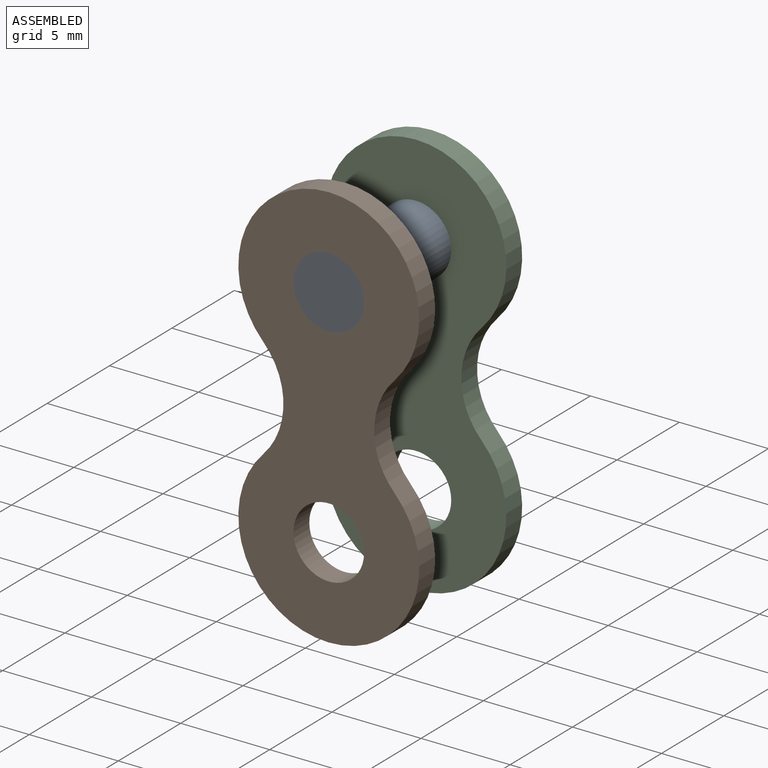
[diagram: assembled view]
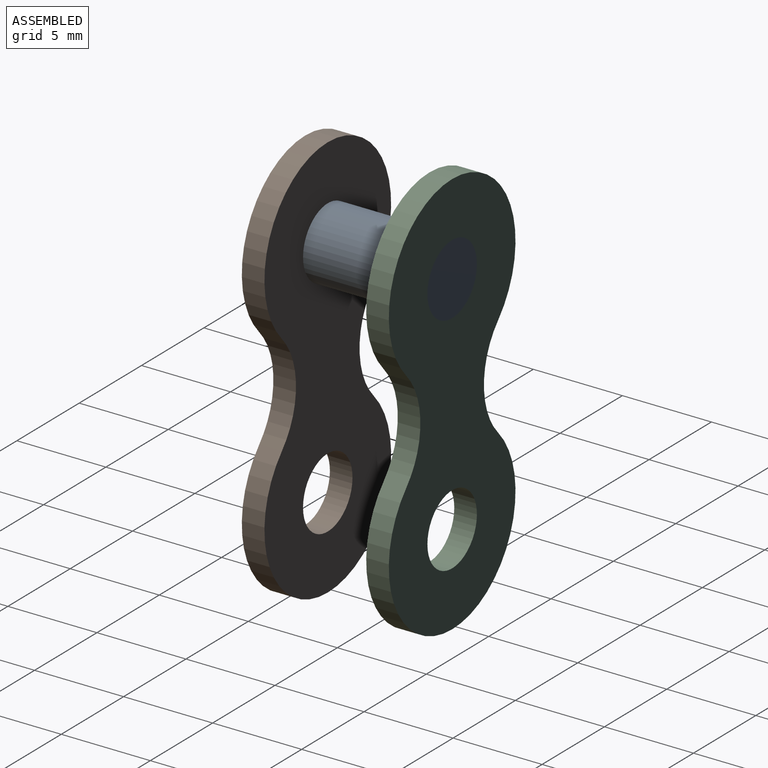
[diagram: assembled view, second angle]
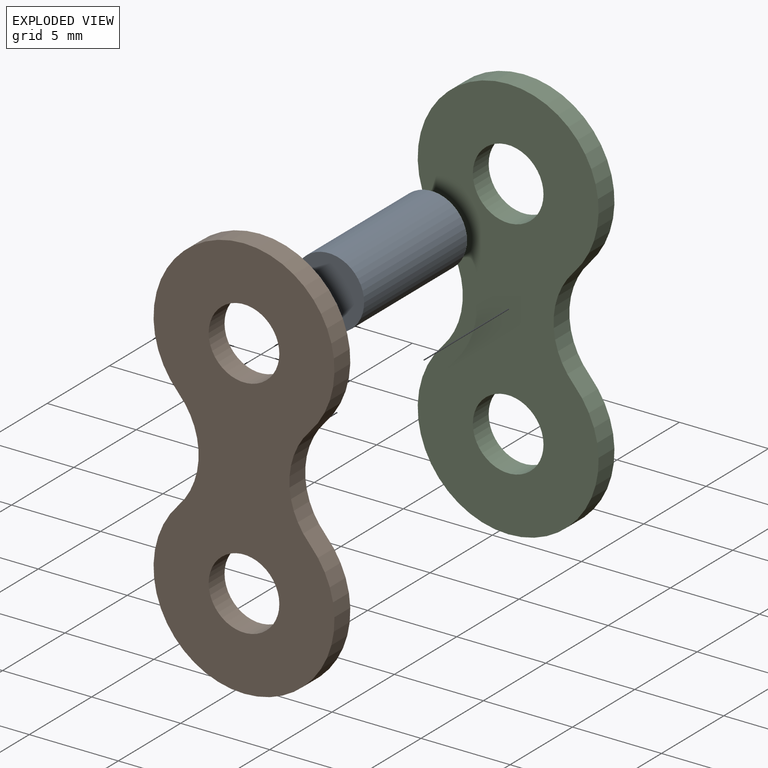
[diagram: exploded view]
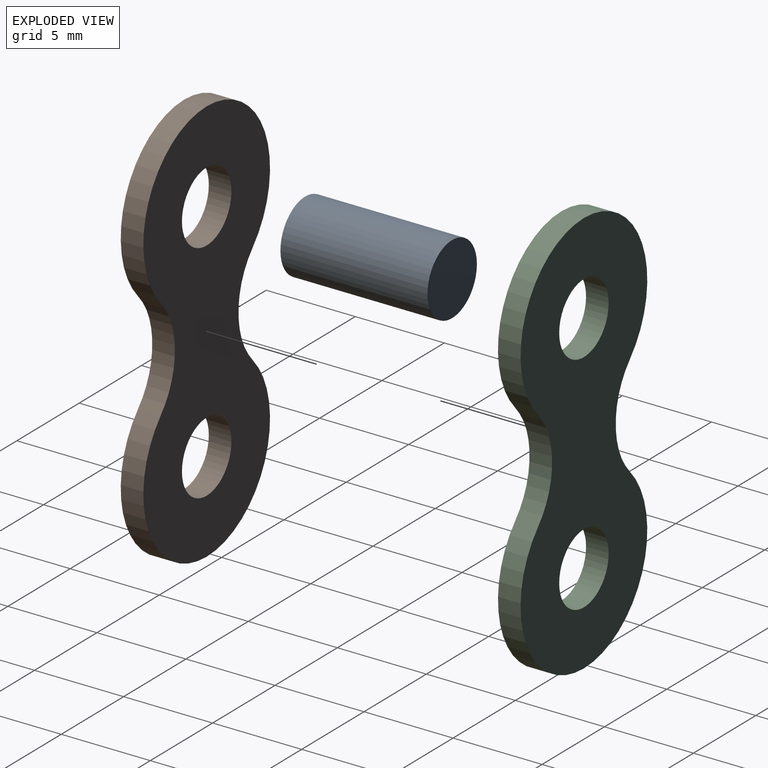
[diagram: exploded view, second angle]
ASSEMBLY  parts=3 mates=2
PART A: 3 faces, bbox 4x8.3x4 mm
  f0: cylinder r=1.98mm len=8.26mm, axis (0,1,0), area 102.9mm2, adj f1,f2
  f1: plane 3.97x3.97mm, normal (0,-1,0), area 12.4mm2, adj f0
  f2: plane 3.97x3.97mm, normal (0,1,0), area 12.4mm2, adj f0
PART B: 8 faces, bbox 10.2x1.3x22.9 mm
  f0: cylinder r=4.15mm len=5.71mm, axis (0,1,0), area 8mm2, adj f1,f5,f6,f7
  f1: cylinder r=5.08mm len=10.16mm, axis (0,1,0), area 30.1mm2, adj f0,f2,f6,f7
  f2: cylinder r=4.15mm len=5.71mm, axis (0,1,0), area 8mm2, adj f1,f5,f6,f7
  f3: cylinder r=1.98mm len=3.97mm, axis (0,1,0), area 15.8mm2, adj f6,f7
  f4: cylinder r=1.98mm len=3.97mm, axis (0,1,0), area 15.8mm2, adj f6,f7
  f5: cylinder r=5.08mm len=10.16mm, axis (0,1,0), area 30.1mm2, adj f0,f2,f6,f7
  f6: plane 22.86x10.16mm, normal (0,-1,0), area 154.4mm2, adj f0,f1,f2,f3,f4,f5
  f7: plane 22.86x10.16mm, normal (0,1,0), area 154.4mm2, adj f0,f1,f2,f3,f4,f5
PART C: same geometry as B
PLACE A t=(6.03,8.67,10.28)mm
PLACE B t=(6.03,1.68,10.28)mm
PLACE C t=(6.03,8.67,10.28)mm
MATE fastened A.f0 <-> B.f3  axis (0,-1,0) through (6.03,0.41,10.28)mm
MATE fastened A.f0 <-> C.f3  axis (0,1,0) through (6.03,8.67,10.28)mm
